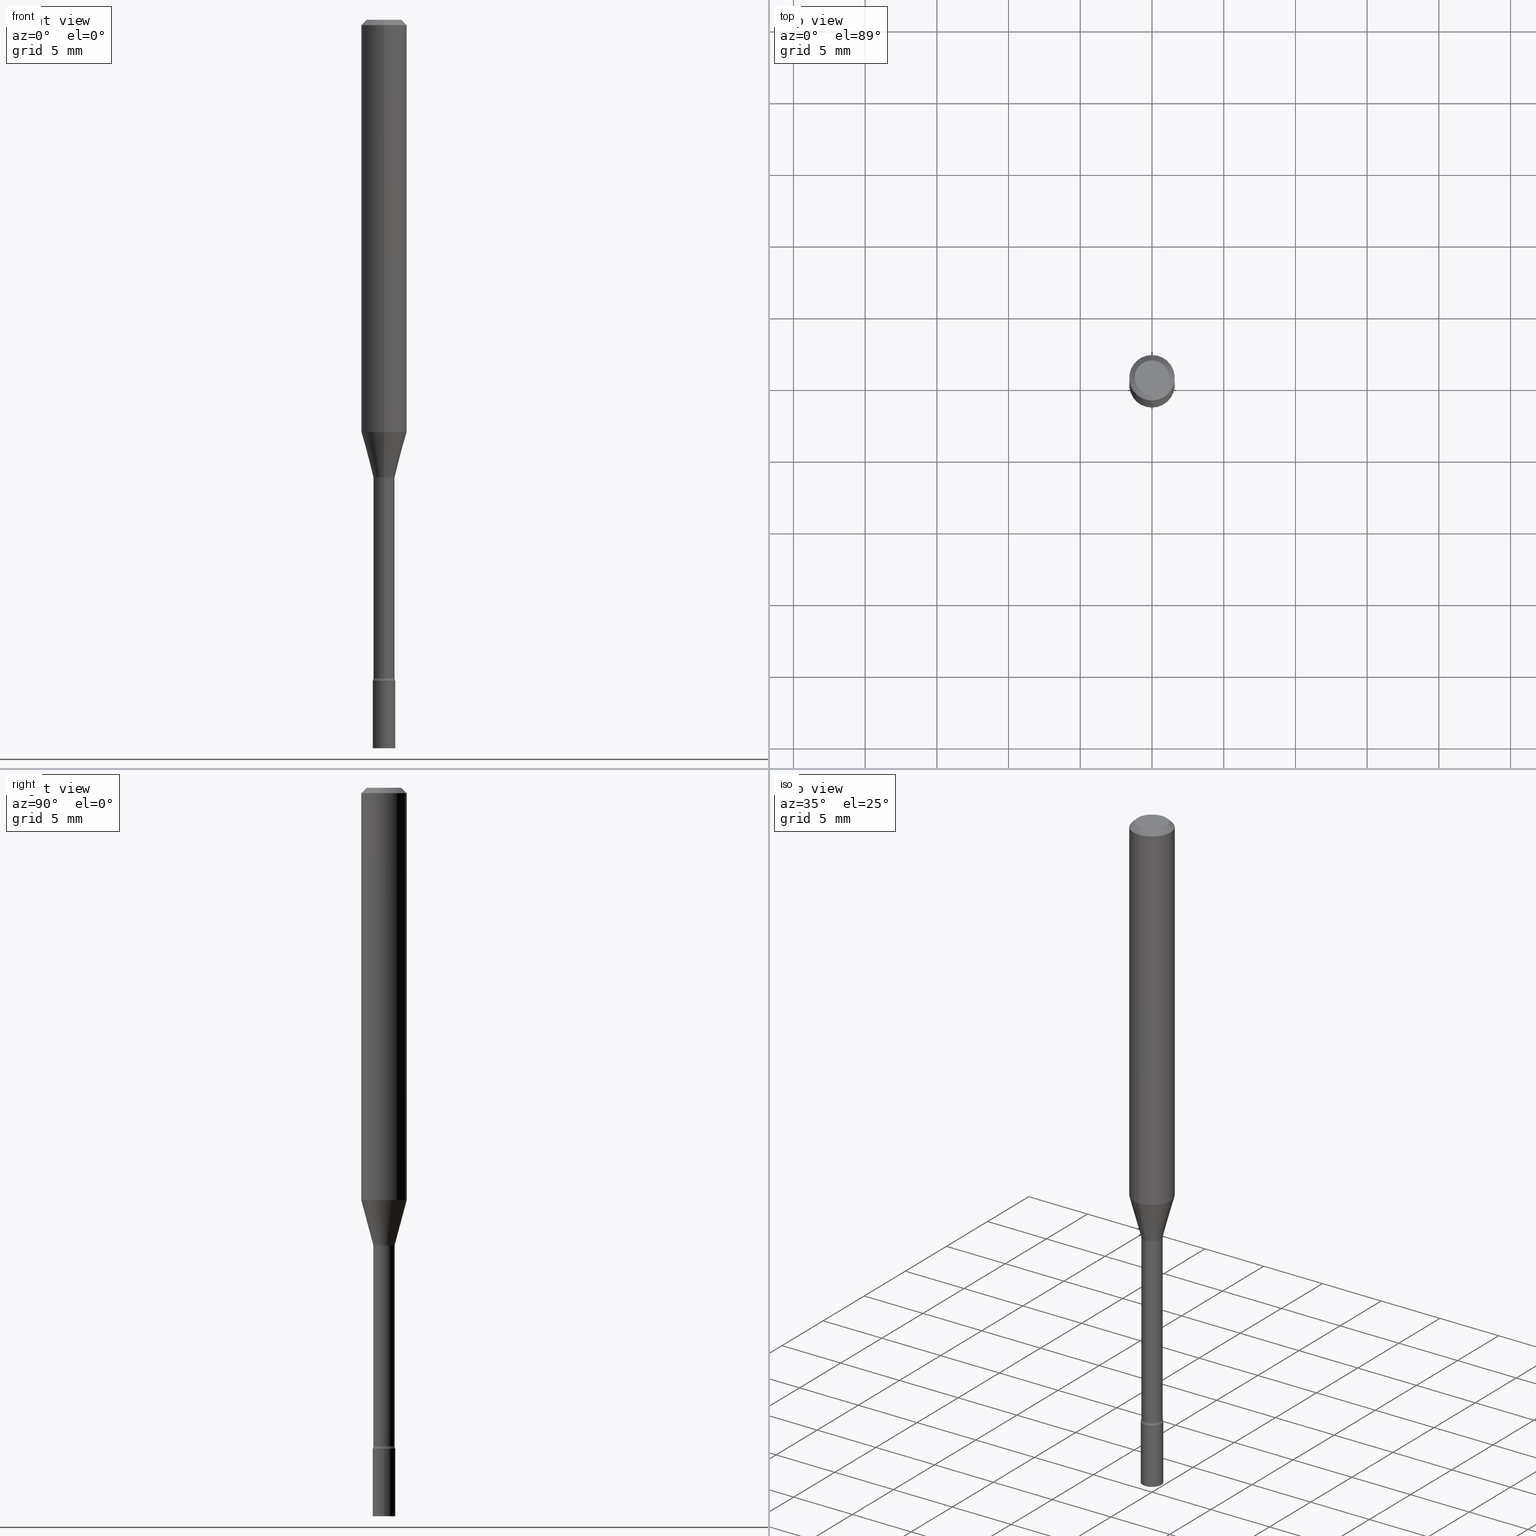
[diagram: canonical four-view strip — front | top / right | iso, engineering-drawing reading convention]
A machine part, canonical four-view strip (front | top / right | iso — engineering-drawing reading convention). The complete STEP part file that produces these views, byte-faithful:
ISO-10303-21;
HEADER;
FILE_DESCRIPTION (( 'STEP AP203' ),
    '1' );
FILE_NAME ('09864.STEP',
    '2024-03-09T02:29:09',
    ( '' ),
    ( '' ),
    'SwSTEP 2.0',
    'SolidWorks 2023',
    '' );
FILE_SCHEMA (( 'CONFIG_CONTROL_DESIGN' ));
ENDSEC;

DATA;
#1 = ORIENTED_EDGE ( 'NONE', *, *, #494, .T. ) ;
#2 = AXIS2_PLACEMENT_3D ( 'NONE', #144, #304, #267 ) ;
#3 = LOCAL_TIME ( 21, 29, 9.000000000000000000, #249 ) ;
#4 = DIRECTION ( 'NONE',  ( -2.445476893853745621E-29, 3.491469756841376044E-15, 1.000000000000000000 ) ) ;
#5 = EDGE_LOOP ( 'NONE', ( #449, #49 ) ) ;
#6 = ORIENTED_EDGE ( 'NONE', *, *, #40, .F. ) ;
#7 = ORIENTED_EDGE ( 'NONE', *, *, #371, .F. ) ;
#8 = VERTEX_POINT ( 'NONE', #21 ) ;
#9 = CIRCLE ( 'NONE', #400, 0.01500000000000001853 ) ;
#10 = VERTEX_POINT ( 'NONE', #397 ) ;
#11 = DIRECTION ( 'NONE',  ( -6.982962677686265922E-15, -1.000000000000000000, 0.000000000000000000 ) ) ;
#12 = EDGE_LOOP ( 'NONE', ( #308, #404, #329, #252 ) ) ;
#13 = APPROVAL_ROLE ( '' ) ;
#14 = MECHANICAL_CONTEXT ( 'NONE', #339, 'mechanical' ) ;
#15 = CARTESIAN_POINT ( 'NONE',  ( 3.076348275793326515E-29, -4.392180925298853782E-15, -1.257974787463810973 ) ) ;
#16 = VERTEX_POINT ( 'NONE', #151 ) ;
#17 = ORIENTED_EDGE ( 'NONE', *, *, #519, .F. ) ;
#18 = ADVANCED_FACE ( 'NONE', ( #32 ), #315, .T. ) ;
#19 = DIRECTION ( 'NONE',  ( 1.000000000000000000, -6.982962677686270655E-15, 0.000000000000000000 ) ) ;
#20 = LINE ( 'NONE', #279, #259 ) ;
#21 = CARTESIAN_POINT ( 'NONE',  ( -2.071224423039705600E-16, -0.02966111260566836605, -1.254092501787273051 ) ) ;
#22 = COORDINATED_UNIVERSAL_TIME_OFFSET ( 5, 0, .BEHIND. ) ;
#23 = CARTESIAN_POINT ( 'NONE',  ( -0.03099999999999999978, -6.437986665088246838E-15, -2.000000000000000000 ) ) ;
#24 = ADVANCED_FACE ( 'NONE', ( #349 ), #172, .T. ) ;
#25 = DIRECTION ( 'NONE',  ( -2.445476893853745621E-29, 3.491469756841376044E-15, 1.000000000000000000 ) ) ;
#26 = LINE ( 'NONE', #356, #118 ) ;
#27 = APPROVAL ( #161, 'UNSPECIFIED' ) ;
#28 = AXIS2_PLACEMENT_3D ( 'NONE', #260, #222, #323 ) ;
#29 = APPROVAL_PERSON_ORGANIZATION ( #254, #193, #13 ) ;
#30 = CARTESIAN_POINT ( 'NONE',  ( 4.436095085450694175E-29, -6.333526138910254229E-15, -1.813999999999999835 ) ) ;
#31 = DIRECTION ( 'NONE',  ( -2.445476893853745621E-29, 3.491469756841376044E-15, 1.000000000000000000 ) ) ;
#32 = FACE_OUTER_BOUND ( 'NONE', #411, .T. ) ;
#33 = CC_DESIGN_PERSON_AND_ORGANIZATION_ASSIGNMENT ( #209, #492, ( #457 ) ) ;
#34 = DIRECTION ( 'NONE',  ( -6.982962677686265922E-15, -1.000000000000000000, 0.000000000000000000 ) ) ;
#35 = CIRCLE ( 'NONE', #145, 0.01500000000000001853 ) ;
#36 = CIRCLE ( 'NONE', #504, 0.02915000000000003699 ) ;
#37 = DIRECTION ( 'NONE',  ( -2.445476893853745621E-29, 3.491469756841376044E-15, 1.000000000000000000 ) ) ;
#38 = VERTEX_POINT ( 'NONE', #189 ) ;
#39 = FACE_OUTER_BOUND ( 'NONE', #100, .T. ) ;
#40 = EDGE_CURVE ( 'NONE', #10, #135, #361, .T. ) ;
#41 = ORIENTED_EDGE ( 'NONE', *, *, #438, .T. ) ;
#42 = AXIS2_PLACEMENT_3D ( 'NONE', #62, #276, #69 ) ;
#43 = AXIS2_PLACEMENT_3D ( 'NONE', #266, #31, #478 ) ;
#44 = VERTEX_POINT ( 'NONE', #116 ) ;
#45 = CARTESIAN_POINT ( 'NONE',  ( -4.364351673553916201E-16, -0.06250000000000000000, 2.182168598025860028E-16 ) ) ;
#46 = DIRECTION ( 'NONE',  ( -6.982962677686265922E-15, -1.000000000000000000, 3.491469756841376044E-15 ) ) ;
#47 = EDGE_LOOP ( 'NONE', ( #127, #258 ) ) ;
#48 = VECTOR ( 'NONE', #342, 39.37007874015748143 ) ;
#49 = ORIENTED_EDGE ( 'NONE', *, *, #499, .T. ) ;
#50 = CIRCLE ( 'NONE', #162, 0.02914999999999999883 ) ;
#51 = CIRCLE ( 'NONE', #104, 0.02966111260566398414 ) ;
#52 = CARTESIAN_POINT ( 'NONE',  ( 4.436080414419837365E-29, -6.333547148661465016E-15, -1.813999999999999835 ) ) ;
#53 = DIRECTION ( 'NONE',  ( 1.000000000000000000, -6.982962677686270655E-15, 0.000000000000000000 ) ) ;
#54 = CARTESIAN_POINT ( 'NONE',  ( 3.668215340780625700E-31, -5.237204635262074814E-17, -0.01500000000000003067 ) ) ;
#55 = EDGE_CURVE ( 'NONE', #8, #463, #280, .T. ) ;
#56 = AXIS2_PLACEMENT_3D ( 'NONE', #52, #219, #134 ) ;
#57 = DIRECTION ( 'NONE',  ( -2.445468806185136597E-29, 3.491481338843145583E-15, 1.000000000000000000 ) ) ;
#58 = LINE ( 'NONE', #227, #347 ) ;
#59 = CALENDAR_DATE ( 2024, 8, 3 ) ;
#60 = CARTESIAN_POINT ( 'NONE',  ( 4.418447364519045951E-29, -6.308330037460723492E-15, -1.806783525791634926 ) ) ;
#61 =( NAMED_UNIT ( * ) PLANE_ANGLE_UNIT ( ) SI_UNIT ( $, .RADIAN. ) );
#62 = CARTESIAN_POINT ( 'NONE',  ( 3.137046178381287658E-16, 0.04414999999999374980, -1.806783525791634926 ) ) ;
#63 = CARTESIAN_POINT ( 'NONE',  ( 3.668215340780625700E-31, -5.237204635262074814E-17, -0.01500000000000003067 ) ) ;
#64 = ORIENTED_EDGE ( 'NONE', *, *, #70, .F. ) ;
#65 = DATE_AND_TIME ( #111, #198 ) ;
#66 = VERTEX_POINT ( 'NONE', #430 ) ;
#67 = CIRCLE ( 'NONE', #364, 0.03099999999999999978 ) ;
#68 = FACE_OUTER_BOUND ( 'NONE', #94, .T. ) ;
#69 = DIRECTION ( 'NONE',  ( 7.105427357601001859E-15, 1.000000000000000000, 0.000000000000000000 ) ) ;
#70 = EDGE_CURVE ( 'NONE', #489, #474, #58, .T. ) ;
#71 = DIRECTION ( 'NONE',  ( -2.445468806185136877E-29, 3.491481338843145188E-15, 1.000000000000000000 ) ) ;
#72 = VECTOR ( 'NONE', #488, 39.37007874015748143 ) ;
#73 = ORIENTED_EDGE ( 'NONE', *, *, #253, .T. ) ;
#74 = AXIS2_PLACEMENT_3D ( 'NONE', #414, #381, #448 ) ;
#75 = FACE_OUTER_BOUND ( 'NONE', #99, .T. ) ;
#76 = ORIENTED_EDGE ( 'NONE', *, *, #366, .F. ) ;
#77 = EDGE_CURVE ( 'NONE', #296, #66, #26, .T. ) ;
#78 = VERTEX_POINT ( 'NONE', #196 ) ;
#79 = PERSON_AND_ORGANIZATION ( #324, #429 ) ;
#80 = ADVANCED_FACE ( 'NONE', ( #39 ), #409, .F. ) ;
#81 = ORIENTED_EDGE ( 'NONE', *, *, #405, .T. ) ;
#82 = CC_DESIGN_SECURITY_CLASSIFICATION ( #282, ( #457 ) ) ;
#83 = FACE_OUTER_BOUND ( 'NONE', #451, .T. ) ;
#84 = ORIENTED_EDGE ( 'NONE', *, *, #147, .F. ) ;
#85 = PERSON_AND_ORGANIZATION ( #324, #429 ) ;
#86 = CARTESIAN_POINT ( 'NONE',  ( 3.076338101710126374E-29, -4.392195495165068238E-15, -1.257974787463810973 ) ) ;
#87 = DIRECTION ( 'NONE',  ( -2.445476893853745621E-29, 3.491469756841376044E-15, 1.000000000000000000 ) ) ;
#88 = ORIENTED_EDGE ( 'NONE', *, *, #147, .T. ) ;
#89 = ORIENTED_EDGE ( 'NONE', *, *, #55, .F. ) ;
#90 = DATE_AND_TIME ( #297, #3 ) ;
#91 = PLANE ( 'NONE',  #490 ) ;
#92 = CARTESIAN_POINT ( 'NONE',  ( 4.440892098500900291E-16, 0.06249999999999602401, -1.131536105567578554 ) ) ;
#93 = CIRCLE ( 'NONE', #286, 0.02914999999999999883 ) ;
#94 = EDGE_LOOP ( 'NONE', ( #348, #302, #442, #89 ) ) ;
#95 = APPROVAL_PERSON_ORGANIZATION ( #133, #27, #139 ) ;
#96 = VECTOR ( 'NONE', #103, 39.37007874015748854 ) ;
#97 = SHAPE_DEFINITION_REPRESENTATION ( #309, #138 ) ;
#98 = DIRECTION ( 'NONE',  ( -6.982962677686266711E-15, -1.000000000000000000, 0.000000000000000000 ) ) ;
#99 = EDGE_LOOP ( 'NONE', ( #81, #338, #84, #182 ) ) ;
#100 = EDGE_LOOP ( 'NONE', ( #443, #210, #374, #331 ) ) ;
#101 = DIRECTION ( 'NONE',  ( 1.000000000000000000, 0.000000000000000000, 0.000000000000000000 ) ) ;
#102 = VERTEX_POINT ( 'NONE', #439 ) ;
#103 = DIRECTION ( 'NONE',  ( -1.807323732225328562E-15, -0.2588190451025179639, 0.9659258262890690894 ) ) ;
#104 = AXIS2_PLACEMENT_3D ( 'NONE', #192, #358, #319 ) ;
#105 = CONICAL_SURFACE ( 'NONE', #357, 0.02966111260566398414, 0.2617993877991500740 ) ;
#106 = APPROVAL_STATUS ( 'not_yet_approved' ) ;
#107 = DIRECTION ( 'NONE',  ( 7.105427357601001859E-15, 1.000000000000000000, 0.000000000000000000 ) ) ;
#108 = PERSON_AND_ORGANIZATION_ROLE ( 'design_owner' ) ;
#109 = DIRECTION ( 'NONE',  ( -6.982962677686267499E-15, -1.000000000000000000, 0.000000000000000000 ) ) ;
#110 = DIRECTION ( 'NONE',  ( 2.438088387897960049E-29, -3.491481338843145188E-15, -1.000000000000000000 ) ) ;
#111 = CALENDAR_DATE ( 2024, 8, 3 ) ;
#112 = ORIENTED_EDGE ( 'NONE', *, *, #402, .F. ) ;
#113 = DIRECTION ( 'NONE',  ( -2.445476893853745901E-29, 3.491469756841376044E-15, 1.000000000000000000 ) ) ;
#114 = EDGE_CURVE ( 'NONE', #489, #8, #181, .T. ) ;
#115 = CARTESIAN_POINT ( 'NONE',  ( 0.03099999999999999978, -7.199434520694564708E-15, -2.000000000000000000 ) ) ;
#116 = CARTESIAN_POINT ( 'NONE',  ( -0.03099999999999999978, -6.437986665088246838E-15, -1.813999999999999835 ) ) ;
#117 = LOCAL_TIME ( 21, 29, 9.000000000000000000, #461 ) ;
#118 = VECTOR ( 'NONE', #71, 39.37007874015748143 ) ;
#119 = DIRECTION ( 'NONE',  ( 1.000000000000000000, -6.982962677686270655E-15, 0.000000000000000000 ) ) ;
#120 = DIRECTION ( 'NONE',  ( -2.445476893853745901E-29, 3.491469756841376044E-15, 1.000000000000000000 ) ) ;
#121 = EDGE_CURVE ( 'NONE', #135, #10, #125, .T. ) ;
#122 = AXIS2_PLACEMENT_3D ( 'NONE', #389, #57, #19 ) ;
#123 = EDGE_LOOP ( 'NONE', ( #293, #247, #205, #306 ) ) ;
#124 = CIRCLE ( 'NONE', #56, 0.03099999999999999978 ) ;
#125 = CIRCLE ( 'NONE', #395, 0.06250000000000000000 ) ;
#126 = AXIS2_PLACEMENT_3D ( 'NONE', #156, #321, #479 ) ;
#127 = ORIENTED_EDGE ( 'NONE', *, *, #352, .F. ) ;
#128 = EDGE_CURVE ( 'NONE', #422, #38, #157, .T. ) ;
#129 = CYLINDRICAL_SURFACE ( 'NONE', #74, 0.02915000000000001618 ) ;
#130 = APPROVAL_DATE_TIME ( #446, #27 ) ;
#131 = EDGE_CURVE ( 'NONE', #16, #10, #201, .T. ) ;
#132 = CARTESIAN_POINT ( 'NONE',  ( 3.274220454076450364E-16, 0.02966111260565960916, -1.254092501787273051 ) ) ;
#133 = PERSON_AND_ORGANIZATION ( #324, #429 ) ;
#134 = DIRECTION ( 'NONE',  ( 1.000000000000000000, -6.982962677686270655E-15, 0.000000000000000000 ) ) ;
#135 = VERTEX_POINT ( 'NONE', #454 ) ;
#136 = PERSON_AND_ORGANIZATION_ROLE ( 'classification_officer' ) ;
#137 = DIRECTION ( 'NONE',  ( -4.851104656540964275E-15, -0.7071067811865500152, -0.7071067811865450192 ) ) ;
#138 = ADVANCED_BREP_SHAPE_REPRESENTATION ( '09864', ( #237, #408, #191 ), #261 ) ;
#139 = APPROVAL_ROLE ( '' ) ;
#140 = CARTESIAN_POINT ( 'NONE',  ( 0.000000000000000000, 0.000000000000000000, 0.000000000000000000 ) ) ;
#141 = CARTESIAN_POINT ( 'NONE',  ( 2.164718430083186060E-16, 0.03099999999999366457, -1.813999999999999835 ) ) ;
#142 = ORIENTED_EDGE ( 'NONE', *, *, #121, .F. ) ;
#143 = DATE_AND_TIME ( #59, #305 ) ;
#144 = CARTESIAN_POINT ( 'NONE',  ( 3.066854235876012997E-29, -4.378626042271803286E-15, -1.254092501787273051 ) ) ;
#145 = AXIS2_PLACEMENT_3D ( 'NONE', #228, #274, #272 ) ;
#146 = DIRECTION ( 'NONE',  ( 6.982962677686265922E-15, 1.000000000000000000, -3.483106191921935554E-15 ) ) ;
#147 = EDGE_CURVE ( 'NONE', #102, #38, #50, .T. ) ;
#148 = ORIENTED_EDGE ( 'NONE', *, *, #333, .F. ) ;
#149 = DIRECTION ( 'NONE',  ( 2.445476893853745621E-29, -3.491469756841376044E-15, -1.000000000000000000 ) ) ;
#150 = CYLINDRICAL_SURFACE ( 'NONE', #190, 0.02915000000000001618 ) ;
#151 = CARTESIAN_POINT ( 'NONE',  ( -3.773273898774340269E-16, -0.04749999999999999362, 1.369303523770122699E-16 ) ) ;
#152 = CIRCLE ( 'NONE', #218, 0.02915000000000003699 ) ;
#153 = CARTESIAN_POINT ( 'NONE',  ( 4.418432751852640684E-29, -6.308350963630715621E-15, -1.806783525791634704 ) ) ;
#154 = APPROVAL_STATUS ( 'not_yet_approved' ) ;
#155 = DIRECTION ( 'NONE',  ( -6.982962677686265922E-15, -1.000000000000000000, 0.000000000000000000 ) ) ;
#156 = CARTESIAN_POINT ( 'NONE',  ( 4.418432751852640684E-29, -6.308350963630715621E-15, -1.806783525791634704 ) ) ;
#157 = LINE ( 'NONE', #238, #481 ) ;
#158 = ADVANCED_FACE ( 'NONE', ( #213 ), #419, .T. ) ;
#159 = CIRCLE ( 'NONE', #511, 0.06250000000000000000 ) ;
#160 = VERTEX_POINT ( 'NONE', #312 ) ;
#161 = APPROVAL_STATUS ( 'not_yet_approved' ) ;
#162 = AXIS2_PLACEMENT_3D ( 'NONE', #332, #250, #337 ) ;
#163 = DIRECTION ( 'NONE',  ( -2.445476893853745621E-29, 3.491469756841376044E-15, 1.000000000000000000 ) ) ;
#164 = FACE_OUTER_BOUND ( 'NONE', #169, .T. ) ;
#165 = VERTEX_POINT ( 'NONE', #482 ) ;
#166 = ADVANCED_FACE ( 'NONE', ( #370 ), #375, .T. ) ;
#167 = CARTESIAN_POINT ( 'NONE',  ( 7.070964645214032544E-46, -1.009539663715828940E-31, -2.891446107295307100E-17 ) ) ;
#168 = VERTEX_POINT ( 'NONE', #257 ) ;
#169 = EDGE_LOOP ( 'NONE', ( #376, #41, #6, #415 ) ) ;
#170 = CONICAL_SURFACE ( 'NONE', #2, 0.02966111260566398414, 0.2617993877991500740 ) ;
#171 = CALENDAR_DATE ( 2024, 8, 3 ) ;
#172 = CONICAL_SURFACE ( 'NONE', #285, 0.06250000000000000000, 0.7853981633974483900 ) ;
#173 = ADVANCED_FACE ( 'NONE', ( #75 ), #129, .T. ) ;
#174 = CIRCLE ( 'NONE', #122, 0.03099999999999999978 ) ;
#175 = CYLINDRICAL_SURFACE ( 'NONE', #268, 0.03099999999999999978 ) ;
#176 = ORIENTED_EDGE ( 'NONE', *, *, #362, .T. ) ;
#177 = LENGTH_MEASURE_WITH_UNIT ( LENGTH_MEASURE( 0.02539999999999999897 ), #377 );
#178 = DIRECTION ( 'NONE',  ( -2.445476893853745621E-29, 3.491469756841376044E-15, 1.000000000000000000 ) ) ;
#179 = CARTESIAN_POINT ( 'NONE',  ( 4.418447364519045951E-29, -6.308330037460723492E-15, -1.806783525791634926 ) ) ;
#180 = APPROVAL_DATE_TIME ( #65, #506 ) ;
#181 = CIRCLE ( 'NONE', #467, 0.02966111260566398414 ) ;
#182 = ORIENTED_EDGE ( 'NONE', *, *, #320, .F. ) ;
#183 = DIRECTION ( 'NONE',  ( -6.982962677686265922E-15, -1.000000000000000000, 3.491469756841376438E-15 ) ) ;
#184 =( NAMED_UNIT ( * ) SI_UNIT ( $, .STERADIAN. ) SOLID_ANGLE_UNIT ( ) );
#185 = ORIENTED_EDGE ( 'NONE', *, *, #420, .F. ) ;
#186 = DIRECTION ( 'NONE',  ( -6.982962677686265922E-15, -1.000000000000000000, 4.370956789862821150E-15 ) ) ;
#187 = ORIENTED_EDGE ( 'NONE', *, *, #427, .F. ) ;
#188 = DIRECTION ( 'NONE',  ( -2.445476893853745621E-29, 3.491469756841376044E-15, 1.000000000000000000 ) ) ;
#189 = CARTESIAN_POINT ( 'NONE',  ( 2.071232074741134953E-16, 0.02914999999999560651, -1.257974787463810973 ) ) ;
#190 = AXIS2_PLACEMENT_3D ( 'NONE', #353, #382, #313 ) ;
#191 = AXIS2_PLACEMENT_3D ( 'NONE', #510, #314, #101 ) ;
#192 = CARTESIAN_POINT ( 'NONE',  ( 3.066854235876012997E-29, -4.378626042271803286E-15, -1.254092501787273051 ) ) ;
#193 = APPROVAL ( #106, 'UNSPECIFIED' ) ;
#194 = CARTESIAN_POINT ( 'NONE',  ( -3.082978022198179073E-16, -0.04415000000000438712, -1.257974787463810751 ) ) ;
#195 = EDGE_CURVE ( 'NONE', #38, #102, #93, .T. ) ;
#196 = CARTESIAN_POINT ( 'NONE',  ( 2.202682480856754541E-16, 0.03099999999999367845, -1.813999999999999835 ) ) ;
#197 = TOROIDAL_SURFACE ( 'NONE', #126, 0.04415000000000005725, 0.01500000000000002373 ) ;
#198 = LOCAL_TIME ( 21, 29, 9.000000000000000000, #473 ) ;
#199 = EDGE_CURVE ( 'NONE', #78, #168, #393, .T. ) ;
#200 = PRODUCT ( '09864', '09864', '', ( #14 ) ) ;
#201 = LINE ( 'NONE', #447, #240 ) ;
#202 = ORIENTED_EDGE ( 'NONE', *, *, #371, .T. ) ;
#203 = EDGE_CURVE ( 'NONE', #463, #10, #501, .T. ) ;
#204 = AXIS2_PLACEMENT_3D ( 'NONE', #500, #460, #186 ) ;
#205 = ORIENTED_EDGE ( 'NONE', *, *, #320, .T. ) ;
#206 = CLOSED_SHELL ( 'NONE', ( #80, #173, #288, #435, #493, #455, #423, #18, #24, #480, #231, #388, #345, #517 ) ) ;
#207 = DIRECTION ( 'NONE',  ( 6.982962677686265922E-15, 1.000000000000000000, -3.491469756841376044E-15 ) ) ;
#208 = UNCERTAINTY_MEASURE_WITH_UNIT (LENGTH_MEASURE( 1.000000000000000082E-05 ), #390, 'distance_accuracy_value', 'NONE');
#209 = PERSON_AND_ORGANIZATION ( #324, #429 ) ;
#210 = ORIENTED_EDGE ( 'NONE', *, *, #366, .T. ) ;
#211 = FACE_OUTER_BOUND ( 'NONE', #287, .T. ) ;
#212 = AXIS2_PLACEMENT_3D ( 'NONE', #518, #477, #119 ) ;
#213 = FACE_OUTER_BOUND ( 'NONE', #363, .T. ) ;
#214 = CC_DESIGN_APPROVAL ( #506, ( #407 ) ) ;
#215 = DIRECTION ( 'NONE',  ( 2.445476893853745341E-29, -3.491469756841376044E-15, -1.000000000000000000 ) ) ;
#216 = CARTESIAN_POINT ( 'NONE',  ( 4.436095085450694175E-29, -6.333526138910254229E-15, -1.813999999999999835 ) ) ;
#217 = ORIENTED_EDGE ( 'NONE', *, *, #352, .T. ) ;
#218 = AXIS2_PLACEMENT_3D ( 'NONE', #179, #431, #98 ) ;
#219 = DIRECTION ( 'NONE',  ( -2.445468806185136597E-29, 3.491481338843145583E-15, 1.000000000000000000 ) ) ;
#220 = FACE_OUTER_BOUND ( 'NONE', #497, .T. ) ;
#221 = PRODUCT_RELATED_PRODUCT_CATEGORY ( 'detail', '', ( #200 ) ) ;
#222 = DIRECTION ( 'NONE',  ( -2.445468806185136597E-29, 3.491481338843145583E-15, 1.000000000000000000 ) ) ;
#223 = DIRECTION ( 'NONE',  ( -2.445468806185136877E-29, 3.491481338843145188E-15, 1.000000000000000000 ) ) ;
#224 = DATE_AND_TIME ( #265, #117 ) ;
#225 = APPLICATION_CONTEXT ( 'configuration controlled 3d designs of mechanical parts and assemblies' ) ;
#226 = FACE_OUTER_BOUND ( 'NONE', #12, .T. ) ;
#227 = CARTESIAN_POINT ( 'NONE',  ( 2.107548809651994522E-16, 0.02966111260565960570, -1.254092501787273051 ) ) ;
#228 = CARTESIAN_POINT ( 'NONE',  ( -3.082978022198048911E-16, -0.04415000000000637165, -1.806783525791634482 ) ) ;
#229 = DIRECTION ( 'NONE',  ( -2.445476893853745621E-29, 3.491469756841376044E-15, 1.000000000000000000 ) ) ;
#230 = CARTESIAN_POINT ( 'NONE',  ( -2.071224423039705600E-16, -0.02966111260566836605, -1.254092501787273051 ) ) ;
#231 = ADVANCED_FACE ( 'NONE', ( #211 ), #496, .F. ) ;
#232 = LINE ( 'NONE', #464, #441 ) ;
#233 = PERSON_AND_ORGANIZATION ( #324, #429 ) ;
#234 = LOCAL_TIME ( 21, 29, 9.000000000000000000, #486 ) ;
#235 = CARTESIAN_POINT ( 'NONE',  ( 3.066854235876012997E-29, -4.378626042271803286E-15, -1.254092501787273051 ) ) ;
#236 = ORIENTED_EDGE ( 'NONE', *, *, #121, .T. ) ;
#237 = MANIFOLD_SOLID_BREP ( 'Body-Move/Copy2[1]', #491 ) ;
#238 = CARTESIAN_POINT ( 'NONE',  ( 2.071232074740692945E-16, 0.02915000000000001618, -1.017763434119261568E-16 ) ) ;
#239 = AXIS2_PLACEMENT_3D ( 'NONE', #141, #301, #470 ) ;
#240 = VECTOR ( 'NONE', #137, 39.37007874015748143 ) ;
#241 = ORIENTED_EDGE ( 'NONE', *, *, #244, .T. ) ;
#242 = DIRECTION ( 'NONE',  ( -6.982962677686265922E-15, -1.000000000000000000, 3.491469756841376044E-15 ) ) ;
#243 = EDGE_LOOP ( 'NONE', ( #64, #295, #298, #7 ) ) ;
#244 = EDGE_CURVE ( 'NONE', #8, #102, #354, .T. ) ;
#245 = PERSON_AND_ORGANIZATION_ROLE ( 'creator' ) ;
#246 = DIRECTION ( 'NONE',  ( -6.982962677686266711E-15, -1.000000000000000000, 3.491469756841376438E-15 ) ) ;
#247 = ORIENTED_EDGE ( 'NONE', *, *, #402, .T. ) ;
#248 = EDGE_LOOP ( 'NONE', ( #502, #185, #1, #236 ) ) ;
#249 = COORDINATED_UNIVERSAL_TIME_OFFSET ( 5, 0, .BEHIND. ) ;
#250 = DIRECTION ( 'NONE',  ( -2.445476893853745621E-29, 3.491469756841376044E-15, 1.000000000000000000 ) ) ;
#251 = DIRECTION ( 'NONE',  ( -6.982962677686265922E-15, -1.000000000000000000, 0.000000000000000000 ) ) ;
#252 = ORIENTED_EDGE ( 'NONE', *, *, #333, .T. ) ;
#253 = EDGE_CURVE ( 'NONE', #422, #78, #271, .T. ) ;
#254 = PERSON_AND_ORGANIZATION ( #324, #429 ) ;
#255 = FACE_OUTER_BOUND ( 'NONE', #5, .T. ) ;
#256 = ORIENTED_EDGE ( 'NONE', *, *, #427, .T. ) ;
#257 = CARTESIAN_POINT ( 'NONE',  ( -2.164718430082299084E-16, -0.03100000000000634540, -1.813999999999999835 ) ) ;
#258 = ORIENTED_EDGE ( 'NONE', *, *, #294, .F. ) ;
#259 = VECTOR ( 'NONE', #113, 39.37007874015748143 ) ;
#260 = CARTESIAN_POINT ( 'NONE',  ( 0.000000000000000000, 0.000000000000000000, 0.000000000000000000 ) ) ;
#261 =( GEOMETRIC_REPRESENTATION_CONTEXT ( 3 ) GLOBAL_UNCERTAINTY_ASSIGNED_CONTEXT ( ( #208 ) ) GLOBAL_UNIT_ASSIGNED_CONTEXT ( ( #390, #61, #184 ) ) REPRESENTATION_CONTEXT ( 'NONE', 'WORKASPACE' ) );
#262 = EDGE_LOOP ( 'NONE', ( #299, #256 ) ) ;
#263 = DIRECTION ( 'NONE',  ( -6.982962677686266711E-15, -1.000000000000000000, 3.491469756841376438E-15 ) ) ;
#264 = DIRECTION ( 'NONE',  ( -1.000000000000000000, 6.982962677686265922E-15, -4.876176775795935793E-29 ) ) ;
#265 = CALENDAR_DATE ( 2024, 8, 3 ) ;
#266 = CARTESIAN_POINT ( 'NONE',  ( 0.000000000000000000, 0.000000000000000000, 0.000000000000000000 ) ) ;
#267 = DIRECTION ( 'NONE',  ( -6.982962677686265922E-15, -1.000000000000000000, 0.000000000000000000 ) ) ;
#268 = AXIS2_PLACEMENT_3D ( 'NONE', #140, #291, #369 ) ;
#269 = DIRECTION ( 'NONE',  ( -1.000000000000000000, 6.982962677686265922E-15, -4.883557194083112340E-29 ) ) ;
#270 = EDGE_LOOP ( 'NONE', ( #76, #417, #241, #88 ) ) ;
#271 = CIRCLE ( 'NONE', #42, 0.01500000000000001853 ) ;
#272 = DIRECTION ( 'NONE',  ( -6.982962677686267499E-15, -1.000000000000000000, 0.000000000000000000 ) ) ;
#273 = PERSON_AND_ORGANIZATION ( #324, #429 ) ;
#274 = DIRECTION ( 'NONE',  ( -1.000000000000000000, 6.982962677686265922E-15, -4.883557194083112340E-29 ) ) ;
#275 = CC_DESIGN_PERSON_AND_ORGANIZATION_ASSIGNMENT ( #351, #108, ( #200 ) ) ;
#276 = DIRECTION ( 'NONE',  ( 1.000000000000000000, -7.105427357601001070E-15, 4.926315366703468447E-29 ) ) ;
#277 = ORIENTED_EDGE ( 'NONE', *, *, #40, .T. ) ;
#278 = EDGE_CURVE ( 'NONE', #463, #474, #159, .T. ) ;
#279 = CARTESIAN_POINT ( 'NONE',  ( 4.440892098500625669E-16, 0.06250000000000000000, -2.182168598025860028E-16 ) ) ;
#280 = LINE ( 'NONE', #230, #96 ) ;
#281 = AXIS2_PLACEMENT_3D ( 'NONE', #424, #505, #53 ) ;
#282 = SECURITY_CLASSIFICATION ( '', '', #410 ) ;
#283 = CC_DESIGN_PERSON_AND_ORGANIZATION_ASSIGNMENT ( #85, #136, ( #282 ) ) ;
#284 = CIRCLE ( 'NONE', #281, 0.03099999999999999978 ) ;
#285 = AXIS2_PLACEMENT_3D ( 'NONE', #508, #149, #311 ) ;
#286 = AXIS2_PLACEMENT_3D ( 'NONE', #15, #87, #251 ) ;
#287 = EDGE_LOOP ( 'NONE', ( #148, #292 ) ) ;
#288 = ADVANCED_FACE ( 'NONE', ( #515 ), #197, .F. ) ;
#289 = EDGE_LOOP ( 'NONE', ( #112, #73, #433, #507 ) ) ;
#290 = DATE_TIME_ROLE ( 'creation_date' ) ;
#291 = DIRECTION ( 'NONE',  ( -2.445468806185136597E-29, 3.491481338843145583E-15, 1.000000000000000000 ) ) ;
#292 = ORIENTED_EDGE ( 'NONE', *, *, #199, .F. ) ;
#293 = ORIENTED_EDGE ( 'NONE', *, *, #128, .F. ) ;
#294 = EDGE_CURVE ( 'NONE', #344, #296, #335, .T. ) ;
#295 = ORIENTED_EDGE ( 'NONE', *, *, #114, .T. ) ;
#296 = VERTEX_POINT ( 'NONE', #115 ) ;
#297 = CALENDAR_DATE ( 2024, 8, 3 ) ;
#298 = ORIENTED_EDGE ( 'NONE', *, *, #55, .T. ) ;
#299 = ORIENTED_EDGE ( 'NONE', *, *, #519, .T. ) ;
#300 = DATE_TIME_ROLE ( 'classification_date' ) ;
#301 = DIRECTION ( 'NONE',  ( -2.445476893853745341E-29, 3.491469756841376044E-15, 1.000000000000000000 ) ) ;
#302 = ORIENTED_EDGE ( 'NONE', *, *, #70, .T. ) ;
#303 = AXIS2_PLACEMENT_3D ( 'NONE', #216, #178, #11 ) ;
#304 = DIRECTION ( 'NONE',  ( -2.445476893853745621E-29, 3.491469756841376044E-15, 1.000000000000000000 ) ) ;
#305 = LOCAL_TIME ( 21, 29, 9.000000000000000000, #22 ) ;
#306 = ORIENTED_EDGE ( 'NONE', *, *, #195, .F. ) ;
#307 = CARTESIAN_POINT ( 'NONE',  ( -2.035533620545547610E-16, -0.02915000000000001618, 1.017763434119261568E-16 ) ) ;
#308 = ORIENTED_EDGE ( 'NONE', *, *, #253, .F. ) ;
#309 = PRODUCT_DEFINITION_SHAPE ( 'NONE', 'NONE',  #407 ) ;
#310 = FACE_OUTER_BOUND ( 'NONE', #47, .T. ) ;
#311 = DIRECTION ( 'NONE',  ( 6.982962677686265922E-15, 1.000000000000000000, -3.483106191921935554E-15 ) ) ;
#312 = CARTESIAN_POINT ( 'NONE',  ( 3.840629472727447874E-16, 0.04749999999999999362, -1.947592745229184365E-16 ) ) ;
#313 = DIRECTION ( 'NONE',  ( -6.982962677686265922E-15, -1.000000000000000000, 3.491469756841375650E-15 ) ) ;
#314 = DIRECTION ( 'NONE',  ( 0.000000000000000000, 0.000000000000000000, 1.000000000000000000 ) ) ;
#315 = CYLINDRICAL_SURFACE ( 'NONE', #43, 0.06250000000000000000 ) ;
#316 = CIRCLE ( 'NONE', #204, 0.06250000000000000000 ) ;
#317 = DIRECTION ( 'NONE',  ( -2.445476893853745621E-29, 3.491469756841376044E-15, 1.000000000000000000 ) ) ;
#318 = APPROVAL_ROLE ( '' ) ;
#319 = DIRECTION ( 'NONE',  ( -6.982962677686265922E-15, -1.000000000000000000, 0.000000000000000000 ) ) ;
#320 = EDGE_CURVE ( 'NONE', #165, #102, #487, .T. ) ;
#321 = DIRECTION ( 'NONE',  ( -2.445476893853745621E-29, 3.491469756841376044E-15, 1.000000000000000000 ) ) ;
#322 = CC_DESIGN_DATE_AND_TIME_ASSIGNMENT ( #90, #300, ( #282 ) ) ;
#323 = DIRECTION ( 'NONE',  ( 1.000000000000000000, -6.982962677686266711E-15, 4.876176775795935232E-29 ) ) ;
#324 = PERSON ( 'UNSPECIFIED', 'UNSPECIFIED', 'UNSPECIFIED', ('UNSPECIFIED'), ('UNSPECIFIED'), ('UNSPECIFIED') ) ;
#325 = DESIGN_CONTEXT ( 'detailed design', #225, 'design' ) ;
#326 = AXIS2_PLACEMENT_3D ( 'NONE', #503, #426, #452 ) ;
#327 = CC_DESIGN_APPROVAL ( #193, ( #282 ) ) ;
#328 = AXIS2_PLACEMENT_3D ( 'NONE', #63, #471, #465 ) ;
#329 = ORIENTED_EDGE ( 'NONE', *, *, #384, .T. ) ;
#330 = DIRECTION ( 'NONE',  ( -2.445476893853745621E-29, 3.491469756841376044E-15, 1.000000000000000000 ) ) ;
#331 = ORIENTED_EDGE ( 'NONE', *, *, #244, .F. ) ;
#332 = CARTESIAN_POINT ( 'NONE',  ( 3.076348275793326515E-29, -4.392180925298853782E-15, -1.257974787463810973 ) ) ;
#333 = EDGE_CURVE ( 'NONE', #168, #78, #67, .T. ) ;
#334 = LINE ( 'NONE', #495, #72 ) ;
#335 = CIRCLE ( 'NONE', #212, 0.03099999999999999978 ) ;
#336 = AXIS2_PLACEMENT_3D ( 'NONE', #343, #317, #263 ) ;
#337 = DIRECTION ( 'NONE',  ( -6.982962677686265922E-15, -1.000000000000000000, 0.000000000000000000 ) ) ;
#338 = ORIENTED_EDGE ( 'NONE', *, *, #128, .T. ) ;
#339 = APPLICATION_CONTEXT ( 'configuration controlled 3d designs of mechanical parts and assemblies' ) ;
#340 = ORIENTED_EDGE ( 'NONE', *, *, #131, .T. ) ;
#341 = CYLINDRICAL_SURFACE ( 'NONE', #440, 0.06250000000000000000 ) ;
#342 = DIRECTION ( 'NONE',  ( -2.445476893853745901E-29, 3.491469756841376044E-15, 1.000000000000000000 ) ) ;
#343 = CARTESIAN_POINT ( 'NONE',  ( 7.070964645214032544E-46, -1.009539663715828940E-31, -2.891446107295307100E-17 ) ) ;
#344 = VERTEX_POINT ( 'NONE', #23 ) ;
#345 = ADVANCED_FACE ( 'NONE', ( #387 ), #150, .T. ) ;
#346 = DIRECTION ( 'NONE',  ( -6.982962677686266711E-15, -1.000000000000000000, 0.000000000000000000 ) ) ;
#347 = VECTOR ( 'NONE', #391, 39.37007874015748854 ) ;
#348 = ORIENTED_EDGE ( 'NONE', *, *, #450, .T. ) ;
#349 = FACE_OUTER_BOUND ( 'NONE', #248, .T. ) ;
#350 = DIRECTION ( 'NONE',  ( 2.445476893853745621E-29, -3.491469756841376044E-15, -1.000000000000000000 ) ) ;
#351 = PERSON_AND_ORGANIZATION ( #324, #429 ) ;
#352 = EDGE_CURVE ( 'NONE', #296, #344, #174, .T. ) ;
#353 = CARTESIAN_POINT ( 'NONE',  ( 0.000000000000000000, 0.000000000000000000, 0.000000000000000000 ) ) ;
#354 = CIRCLE ( 'NONE', #516, 0.01500000000000001853 ) ;
#355 = DIRECTION ( 'NONE',  ( -6.982962677686265922E-15, -1.000000000000000000, 4.370956789862821150E-15 ) ) ;
#356 = CARTESIAN_POINT ( 'NONE',  ( 0.03099999999999999978, -2.164718430082742572E-16, 1.511614800496739984E-30 ) ) ;
#357 = AXIS2_PLACEMENT_3D ( 'NONE', #235, #475, #155 ) ;
#358 = DIRECTION ( 'NONE',  ( -2.445476893853745621E-29, 3.491469756841376044E-15, 1.000000000000000000 ) ) ;
#359 = DIRECTION ( 'NONE',  ( -2.445476893853745621E-29, 3.491469756841376044E-15, 1.000000000000000000 ) ) ;
#360 = CIRCLE ( 'NONE', #379, 0.04749999999999999362 ) ;
#361 = CIRCLE ( 'NONE', #328, 0.06250000000000000000 ) ;
#362 = EDGE_CURVE ( 'NONE', #344, #44, #232, .T. ) ;
#363 = EDGE_LOOP ( 'NONE', ( #386, #373, #453, #187 ) ) ;
#364 = AXIS2_PLACEMENT_3D ( 'NONE', #30, #25, #509 ) ;
#365 = TOROIDAL_SURFACE ( 'NONE', #418, 0.04415000000000000174, 0.01500000000000002373 ) ;
#366 = EDGE_CURVE ( 'NONE', #489, #38, #9, .T. ) ;
#367 = ORIENTED_EDGE ( 'NONE', *, *, #203, .T. ) ;
#368 = DIMENSIONAL_EXPONENTS ( 1.000000000000000000, 0.000000000000000000, 0.000000000000000000, 0.000000000000000000, 0.000000000000000000, 0.000000000000000000, 0.000000000000000000 ) ;
#369 = DIRECTION ( 'NONE',  ( 1.000000000000000000, -6.982962677686266711E-15, 4.876176775795935232E-29 ) ) ;
#370 = FACE_OUTER_BOUND ( 'NONE', #262, .T. ) ;
#371 = EDGE_CURVE ( 'NONE', #474, #463, #316, .T. ) ;
#372 = FACE_OUTER_BOUND ( 'NONE', #270, .T. ) ;
#373 = ORIENTED_EDGE ( 'NONE', *, *, #294, .T. ) ;
#374 = ORIENTED_EDGE ( 'NONE', *, *, #195, .T. ) ;
#375 = PLANE ( 'NONE',  #326 ) ;
#376 = ORIENTED_EDGE ( 'NONE', *, *, #278, .T. ) ;
#377 =( LENGTH_UNIT ( ) NAMED_UNIT ( * ) SI_UNIT ( $, .METRE. ) );
#378 = VECTOR ( 'NONE', #466, 39.37007874015748143 ) ;
#379 = AXIS2_PLACEMENT_3D ( 'NONE', #167, #330, #246 ) ;
#380 = CARTESIAN_POINT ( 'NONE',  ( 3.316907271900976096E-16, 0.04749999999999999362, -1.803020439864418702E-16 ) ) ;
#381 = DIRECTION ( 'NONE',  ( -2.445476893853745621E-29, 3.491469756841376044E-15, 1.000000000000000000 ) ) ;
#382 = DIRECTION ( 'NONE',  ( -2.445476893853745621E-29, 3.491469756841376044E-15, 1.000000000000000000 ) ) ;
#383 = ORIENTED_EDGE ( 'NONE', *, *, #438, .F. ) ;
#384 = EDGE_CURVE ( 'NONE', #165, #168, #35, .T. ) ;
#385 = PLANE ( 'NONE',  #434 ) ;
#386 = ORIENTED_EDGE ( 'NONE', *, *, #362, .F. ) ;
#387 = FACE_OUTER_BOUND ( 'NONE', #123, .T. ) ;
#388 = ADVANCED_FACE ( 'NONE', ( #226 ), #456, .F. ) ;
#389 = CARTESIAN_POINT ( 'NONE',  ( 4.890937612370273194E-29, -6.982962677686291165E-15, -2.000000000000000000 ) ) ;
#390 =( CONVERSION_BASED_UNIT ( 'INCH', #177 ) LENGTH_UNIT ( ) NAMED_UNIT ( #368 ) );
#391 = DIRECTION ( 'NONE',  ( 1.839019923739598738E-15, 0.2588190451025247363, 0.9659258262890673130 ) ) ;
#392 = DIRECTION ( 'NONE',  ( 1.000000000000000000, -7.105427357601001070E-15, 4.926315366703468447E-29 ) ) ;
#393 = CIRCLE ( 'NONE', #303, 0.03099999999999999978 ) ;
#394 = CARTESIAN_POINT ( 'NONE',  ( 2.767145400726764925E-29, -3.950724091363269662E-15, -1.131536105567578110 ) ) ;
#395 = AXIS2_PLACEMENT_3D ( 'NONE', #406, #359, #403 ) ;
#396 = CC_DESIGN_DATE_AND_TIME_ASSIGNMENT ( #224, #290, ( #407 ) ) ;
#397 = CARTESIAN_POINT ( 'NONE',  ( -4.364351673553912750E-16, -0.06250000000000005551, -0.01499999999999981209 ) ) ;
#398 = CARTESIAN_POINT ( 'NONE',  ( 3.076338101710126374E-29, -4.392195495165068238E-15, -1.257974787463810973 ) ) ;
#399 = ADVANCED_FACE ( 'NONE', ( #310 ), #385, .T. ) ;
#400 = AXIS2_PLACEMENT_3D ( 'NONE', #428, #392, #107 ) ;
#401 = CONICAL_SURFACE ( 'NONE', #469, 0.06250000000000000000, 0.7853981633974483900 ) ;
#402 = EDGE_CURVE ( 'NONE', #422, #165, #152, .T. ) ;
#403 = DIRECTION ( 'NONE',  ( -6.982962677686265922E-15, -1.000000000000000000, 3.483106191921935554E-15 ) ) ;
#404 = ORIENTED_EDGE ( 'NONE', *, *, #405, .F. ) ;
#405 = EDGE_CURVE ( 'NONE', #165, #422, #36, .T. ) ;
#406 = CARTESIAN_POINT ( 'NONE',  ( 3.668215340780625700E-31, -5.237204635262074814E-17, -0.01500000000000003067 ) ) ;
#407 = PRODUCT_DEFINITION ( 'UNKNOWN', '', #457, #325 ) ;
#408 = MANIFOLD_SOLID_BREP ( 'Body-Move/Copy2[2]', #206 ) ;
#409 = TOROIDAL_SURFACE ( 'NONE', #513, 0.04415000000000000174, 0.01500000000000002373 ) ;
#410 = SECURITY_CLASSIFICATION_LEVEL ( 'unclassified' ) ;
#411 = EDGE_LOOP ( 'NONE', ( #383, #202, #367, #142 ) ) ;
#412 = CARTESIAN_POINT ( 'NONE',  ( 0.000000000000000000, 0.000000000000000000, 0.000000000000000000 ) ) ;
#413 = DIRECTION ( 'NONE',  ( -6.982962677686265922E-15, -1.000000000000000000, 3.491469756841376044E-15 ) ) ;
#414 = CARTESIAN_POINT ( 'NONE',  ( 0.000000000000000000, 0.000000000000000000, 0.000000000000000000 ) ) ;
#415 = ORIENTED_EDGE ( 'NONE', *, *, #203, .F. ) ;
#416 = AXIS2_PLACEMENT_3D ( 'NONE', #153, #188, #183 ) ;
#417 = ORIENTED_EDGE ( 'NONE', *, *, #450, .F. ) ;
#418 = AXIS2_PLACEMENT_3D ( 'NONE', #86, #421, #46 ) ;
#419 = CYLINDRICAL_SURFACE ( 'NONE', #28, 0.03099999999999999978 ) ;
#420 = EDGE_CURVE ( 'NONE', #160, #16, #483, .T. ) ;
#421 = DIRECTION ( 'NONE',  ( -2.445476893853745621E-29, 3.491469756841376044E-15, 1.000000000000000000 ) ) ;
#422 = VERTEX_POINT ( 'NONE', #432 ) ;
#423 = ADVANCED_FACE ( 'NONE', ( #472 ), #170, .T. ) ;
#424 = CARTESIAN_POINT ( 'NONE',  ( 4.436080414419837365E-29, -6.333547148661465016E-15, -1.813999999999999835 ) ) ;
#425 = PERSON_AND_ORGANIZATION_ROLE ( 'creator' ) ;
#426 = DIRECTION ( 'NONE',  ( -2.438088387897960049E-29, 3.491481338843145188E-15, 1.000000000000000000 ) ) ;
#427 = EDGE_CURVE ( 'NONE', #44, #66, #284, .T. ) ;
#428 = CARTESIAN_POINT ( 'NONE',  ( 3.137046178381149114E-16, 0.04414999999999560942, -1.257974787463811195 ) ) ;
#429 = ORGANIZATION ( 'UNSPECIFIED', 'UNSPECIFIED', '' ) ;
#430 = CARTESIAN_POINT ( 'NONE',  ( 0.03099999999999999978, -6.550018991669739348E-15, -1.813999999999999835 ) ) ;
#431 = DIRECTION ( 'NONE',  ( -2.445476893853745621E-29, 3.491469756841376044E-15, 1.000000000000000000 ) ) ;
#432 = CARTESIAN_POINT ( 'NONE',  ( 2.136957277798945610E-16, 0.02914999999999372954, -1.806783525791634926 ) ) ;
#433 = ORIENTED_EDGE ( 'NONE', *, *, #199, .T. ) ;
#434 = AXIS2_PLACEMENT_3D ( 'NONE', #459, #110, #264 ) ;
#435 = ADVANCED_FACE ( 'NONE', ( #220 ), #401, .T. ) ;
#436 = CARTESIAN_POINT ( 'NONE',  ( 3.066854235876012997E-29, -4.378626042271803286E-15, -1.254092501787273051 ) ) ;
#437 = ORIENTED_EDGE ( 'NONE', *, *, #494, .F. ) ;
#438 = EDGE_CURVE ( 'NONE', #474, #135, #20, .T. ) ;
#439 = CARTESIAN_POINT ( 'NONE',  ( -2.035533620545238968E-16, -0.02915000000000439115, -1.257974787463810973 ) ) ;
#440 = AXIS2_PLACEMENT_3D ( 'NONE', #412, #4, #413 ) ;
#441 = VECTOR ( 'NONE', #223, 39.37007874015748143 ) ;
#442 = ORIENTED_EDGE ( 'NONE', *, *, #278, .F. ) ;
#443 = ORIENTED_EDGE ( 'NONE', *, *, #114, .F. ) ;
#444 = ORIENTED_EDGE ( 'NONE', *, *, #499, .F. ) ;
#445 = CARTESIAN_POINT ( 'NONE',  ( -4.364351673553641579E-16, -0.06250000000000398293, -1.131536105567577888 ) ) ;
#446 = DATE_AND_TIME ( #171, #234 ) ;
#447 = CARTESIAN_POINT ( 'NONE',  ( -4.287811248607203282E-16, -0.06250000000000005551, -0.01499999999999981209 ) ) ;
#448 = DIRECTION ( 'NONE',  ( -6.982962677686265922E-15, -1.000000000000000000, 3.491469756841375650E-15 ) ) ;
#449 = ORIENTED_EDGE ( 'NONE', *, *, #420, .T. ) ;
#450 = EDGE_CURVE ( 'NONE', #8, #489, #51, .T. ) ;
#451 = EDGE_LOOP ( 'NONE', ( #217, #176, #17, #498 ) ) ;
#452 = DIRECTION ( 'NONE',  ( 1.000000000000000000, -6.982962677686265922E-15, 4.876176775795935793E-29 ) ) ;
#453 = ORIENTED_EDGE ( 'NONE', *, *, #77, .T. ) ;
#454 = CARTESIAN_POINT ( 'NONE',  ( 4.440892098500904235E-16, 0.06249999999999995143, -0.01500000000000024751 ) ) ;
#455 = ADVANCED_FACE ( 'NONE', ( #68 ), #105, .T. ) ;
#456 = TOROIDAL_SURFACE ( 'NONE', #416, 0.04415000000000005725, 0.01500000000000002373 ) ;
#457 = PRODUCT_DEFINITION_FORMATION_WITH_SPECIFIED_SOURCE ( 'ANY', '', #200, .NOT_KNOWN. ) ;
#458 = APPROVAL_DATE_TIME ( #143, #193 ) ;
#459 = CARTESIAN_POINT ( 'NONE',  ( 2.164718430083231419E-16, 0.03099999999999301578, -2.000000000000000000 ) ) ;
#460 = DIRECTION ( 'NONE',  ( -2.445476893853745621E-29, 3.491469756841376044E-15, 1.000000000000000000 ) ) ;
#461 = COORDINATED_UNIVERSAL_TIME_OFFSET ( 5, 0, .BEHIND. ) ;
#462 = CC_DESIGN_PERSON_AND_ORGANIZATION_ASSIGNMENT ( #79, #245, ( #457 ) ) ;
#463 = VERTEX_POINT ( 'NONE', #445 ) ;
#464 = CARTESIAN_POINT ( 'NONE',  ( -0.03099999999999999978, 2.202682480856310560E-16, -1.524869877979020612E-30 ) ) ;
#465 = DIRECTION ( 'NONE',  ( -6.982962677686265922E-15, -1.000000000000000000, 3.483106191921935554E-15 ) ) ;
#466 = DIRECTION ( 'NONE',  ( -2.445476893853745901E-29, 3.491469756841376044E-15, 1.000000000000000000 ) ) ;
#467 = AXIS2_PLACEMENT_3D ( 'NONE', #436, #163, #34 ) ;
#468 = APPLICATION_PROTOCOL_DEFINITION ( 'international standard', 'config_control_design', 1994, #339 ) ;
#470 = DIRECTION ( 'NONE',  ( -6.982962677686265922E-15, -1.000000000000000000, 3.491469756841376044E-15 ) ) ;
#469 = AXIS2_PLACEMENT_3D ( 'NONE', #54, #350, #146 ) ;
#471 = DIRECTION ( 'NONE',  ( -2.445476893853745621E-29, 3.491469756841376044E-15, 1.000000000000000000 ) ) ;
#472 = FACE_OUTER_BOUND ( 'NONE', #243, .T. ) ;
#473 = COORDINATED_UNIVERSAL_TIME_OFFSET ( 5, 0, .BEHIND. ) ;
#474 = VERTEX_POINT ( 'NONE', #92 ) ;
#475 = DIRECTION ( 'NONE',  ( -2.445476893853745621E-29, 3.491469756841376044E-15, 1.000000000000000000 ) ) ;
#476 = ADVANCED_FACE ( 'NONE', ( #83 ), #175, .T. ) ;
#477 = DIRECTION ( 'NONE',  ( -2.445468806185136597E-29, 3.491481338843145583E-15, 1.000000000000000000 ) ) ;
#478 = DIRECTION ( 'NONE',  ( -6.982962677686265922E-15, -1.000000000000000000, 3.491469756841376044E-15 ) ) ;
#479 = DIRECTION ( 'NONE',  ( -6.982962677686265922E-15, -1.000000000000000000, 3.491469756841376438E-15 ) ) ;
#480 = ADVANCED_FACE ( 'NONE', ( #255 ), #91, .F. ) ;
#481 = VECTOR ( 'NONE', #120, 39.37007874015748143 ) ;
#482 = CARTESIAN_POINT ( 'NONE',  ( -2.035533620545107327E-16, -0.02915000000000634445, -1.806783525791634926 ) ) ;
#483 = CIRCLE ( 'NONE', #336, 0.04749999999999999362 ) ;
#484 = APPROVAL_PERSON_ORGANIZATION ( #273, #506, #318 ) ;
#485 = CC_DESIGN_PERSON_AND_ORGANIZATION_ASSIGNMENT ( #233, #425, ( #407 ) ) ;
#486 = COORDINATED_UNIVERSAL_TIME_OFFSET ( 5, 0, .BEHIND. ) ;
#487 = LINE ( 'NONE', #307, #378 ) ;
#488 = DIRECTION ( 'NONE',  ( 4.937700262164548042E-15, 0.7071067811865451302, -0.7071067811865499042 ) ) ;
#489 = VERTEX_POINT ( 'NONE', #132 ) ;
#490 = AXIS2_PLACEMENT_3D ( 'NONE', #380, #215, #207 ) ;
#491 = CLOSED_SHELL ( 'NONE', ( #476, #166, #158, #399 ) ) ;
#492 = PERSON_AND_ORGANIZATION_ROLE ( 'design_supplier' ) ;
#493 = ADVANCED_FACE ( 'NONE', ( #164 ), #341, .T. ) ;
#494 = EDGE_CURVE ( 'NONE', #160, #135, #334, .T. ) ;
#495 = CARTESIAN_POINT ( 'NONE',  ( 4.364351673553919652E-16, 0.06249999999999995143, -0.01500000000000024751 ) ) ;
#496 = PLANE ( 'NONE',  #239 ) ;
#497 = EDGE_LOOP ( 'NONE', ( #444, #340, #277, #437 ) ) ;
#498 = ORIENTED_EDGE ( 'NONE', *, *, #77, .F. ) ;
#499 = EDGE_CURVE ( 'NONE', #16, #160, #360, .T. ) ;
#500 = CARTESIAN_POINT ( 'NONE',  ( 2.767145400726764925E-29, -3.950724091363269662E-15, -1.131536105567578110 ) ) ;
#501 = LINE ( 'NONE', #45, #48 ) ;
#502 = ORIENTED_EDGE ( 'NONE', *, *, #131, .F. ) ;
#503 = CARTESIAN_POINT ( 'NONE',  ( 4.436080414419837365E-29, -6.333547148661465016E-15, -1.813999999999999835 ) ) ;
#504 = AXIS2_PLACEMENT_3D ( 'NONE', #60, #512, #346 ) ;
#505 = DIRECTION ( 'NONE',  ( -2.445468806185136597E-29, 3.491481338843145583E-15, 1.000000000000000000 ) ) ;
#506 = APPROVAL ( #154, 'UNSPECIFIED' ) ;
#507 = ORIENTED_EDGE ( 'NONE', *, *, #384, .F. ) ;
#508 = CARTESIAN_POINT ( 'NONE',  ( 3.668215340780625700E-31, -5.237204635262074814E-17, -0.01500000000000003067 ) ) ;
#509 = DIRECTION ( 'NONE',  ( -6.982962677686265922E-15, -1.000000000000000000, 0.000000000000000000 ) ) ;
#510 = CARTESIAN_POINT ( 'NONE',  ( 0.000000000000000000, 0.000000000000000000, 0.000000000000000000 ) ) ;
#511 = AXIS2_PLACEMENT_3D ( 'NONE', #394, #229, #355 ) ;
#512 = DIRECTION ( 'NONE',  ( -2.445476893853745621E-29, 3.491469756841376044E-15, 1.000000000000000000 ) ) ;
#513 = AXIS2_PLACEMENT_3D ( 'NONE', #398, #37, #242 ) ;
#514 = APPLICATION_PROTOCOL_DEFINITION ( 'international standard', 'config_control_design', 1994, #225 ) ;
#516 = AXIS2_PLACEMENT_3D ( 'NONE', #194, #269, #109 ) ;
#515 = FACE_OUTER_BOUND ( 'NONE', #289, .T. ) ;
#517 = ADVANCED_FACE ( 'NONE', ( #372 ), #365, .F. ) ;
#518 = CARTESIAN_POINT ( 'NONE',  ( 4.890937612370273194E-29, -6.982962677686291165E-15, -2.000000000000000000 ) ) ;
#519 = EDGE_CURVE ( 'NONE', #66, #44, #124, .T. ) ;
#520 = CC_DESIGN_APPROVAL ( #27, ( #457 ) ) ;
ENDSEC;
END-ISO-10303-21;
